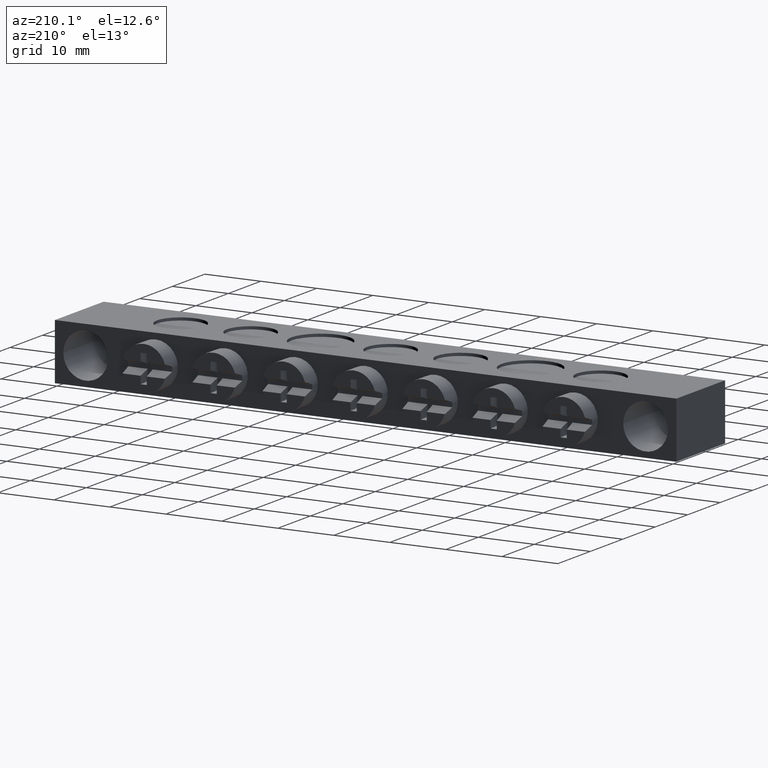
[diagram: clean part render]
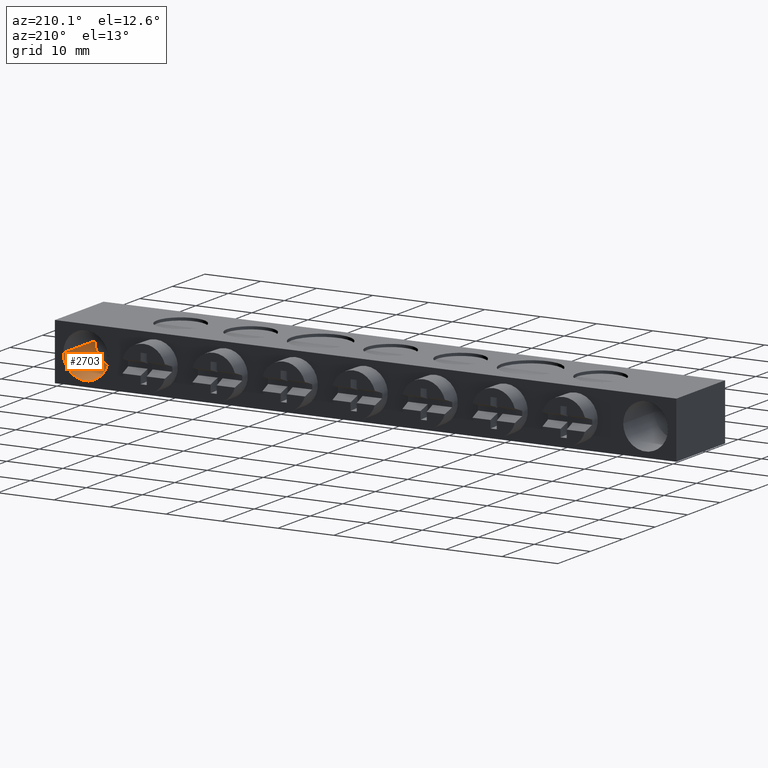
[diagram: same view with one face highlighted and labeled with its STEP entity id]
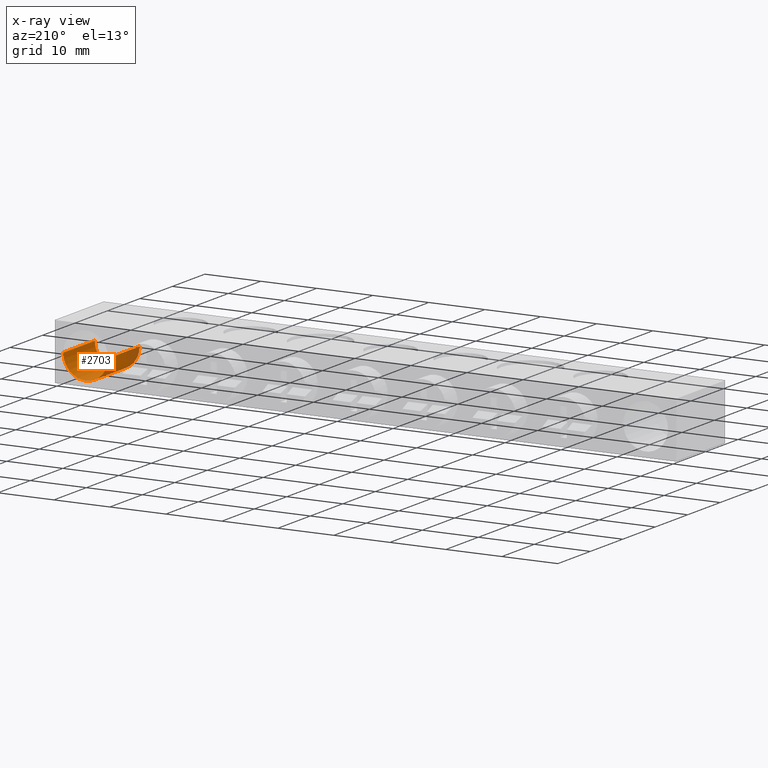
[diagram: x-ray of the same camera — body ghosted, the highlighted face saturated]
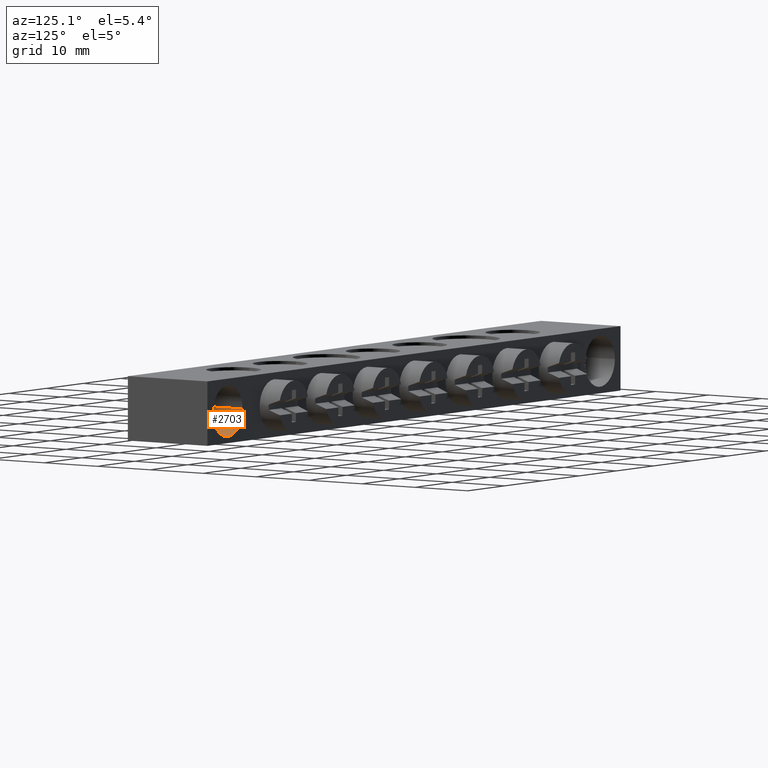
[diagram: same view with one face highlighted and labeled with its STEP entity id]
A machine part, auxiliary view. The second image highlights one B-rep face of the part: STEP entity #2703.
The next image is the same camera in x-ray: the body ghosted, the highlighted face saturated — about 10% of this face is hidden behind the body in this view.
A second angle (auxiliary view) of the same face is appended — the face is thin or edge-on in the first view.
In plain terms, the highlighted cylindrical surface (edge-blend (fillet) strip) has radius 4 mm, axis along (0, 1, 0).
Its self-contained STEP definition (entity closure, byte-faithful):
#25 = EDGE_CURVE ( 'NONE', #3244, #3259, #869, .T. ) ;
#284 = EDGE_LOOP ( 'NONE', ( #4137, #4095, #4167, #4128 ) ) ;
#856 = CIRCLE ( 'NONE', #879, 4.000000000000031100 ) ;
#869 = CIRCLE ( 'NONE', #895, 4.000000000000031100 ) ;
#879 = AXIS2_PLACEMENT_3D ( 'NONE', #3579, #3543, #3581 ) ;
#895 = AXIS2_PLACEMENT_3D ( 'NONE', #3338, #3356, #3365 ) ;
#1022 = AXIS2_PLACEMENT_3D ( 'NONE', #2187, #2193, #2198 ) ;
#1188 = VECTOR ( 'NONE', #3199, 1000.000000000000000 ) ;
#1224 = VECTOR ( 'NONE', #3185, 1000.000000000000000 ) ;
#1615 = LINE ( 'NONE', #3198, #1188 ) ;
#2186 = CYLINDRICAL_SURFACE ( 'NONE', #1022, 4.000000000000031100 ) ;
#2187 = CARTESIAN_POINT ( 'NONE',  ( 112.0000000000000000, 15.00000000000000400, -5.000000000000000000 ) ) ;
#2193 = DIRECTION ( 'NONE',  ( 1.156482317317877900E-016, 1.000000000000000000, 0.0000000000000000000 ) ) ;
#2198 = DIRECTION ( 'NONE',  ( -1.000000000000000000, 0.0000000000000000000, 0.0000000000000000000 ) ) ;
#2222 = FACE_OUTER_BOUND ( 'NONE', #284, .T. ) ;
#2285 = EDGE_CURVE ( 'NONE', #3265, #3278, #856, .T. ) ;
#2334 = CARTESIAN_POINT ( 'NONE',  ( 107.9999999999999700, 15.00000000000000400, -5.000000000000000000 ) ) ;
#2364 = CARTESIAN_POINT ( 'NONE',  ( 116.0000000000653400, 5.300000000000036200, -4.999999999999999100 ) ) ;
#2378 = CARTESIAN_POINT ( 'NONE',  ( 107.9999999999346600, 5.300000000000038000, -5.000000000000000000 ) ) ;
#2383 = CARTESIAN_POINT ( 'NONE',  ( 116.0000000000000300, 15.00000000000000400, -4.999999999999999100 ) ) ;
#2703 = ADVANCED_FACE ( 'NONE', ( #2222 ), #2186, .F. ) ;
#2781 = EDGE_CURVE ( 'NONE', #3244, #3265, #1615, .T. ) ;
#2842 = EDGE_CURVE ( 'NONE', #3259, #3278, #3151, .T. ) ;
#3127 = CARTESIAN_POINT ( 'NONE',  ( 107.9999999999999700, 15.00000000000000400, -5.000000000000000000 ) ) ;
#3151 = LINE ( 'NONE', #3127, #1224 ) ;
#3185 = DIRECTION ( 'NONE',  ( 1.156482317317877900E-016, 1.000000000000000000, 0.0000000000000000000 ) ) ;
#3198 = CARTESIAN_POINT ( 'NONE',  ( 116.0000000000000300, 15.00000000000000400, -4.999999999999999100 ) ) ;
#3199 = DIRECTION ( 'NONE',  ( 1.156482317317877900E-016, 1.000000000000000000, 0.0000000000000000000 ) ) ;
#3244 = VERTEX_POINT ( 'NONE', #2364 ) ;
#3259 = VERTEX_POINT ( 'NONE', #2378 ) ;
#3265 = VERTEX_POINT ( 'NONE', #2383 ) ;
#3278 = VERTEX_POINT ( 'NONE', #2334 ) ;
#3338 = CARTESIAN_POINT ( 'NONE',  ( 112.0000000000000000, 5.300000000000037100, -5.000000000000000000 ) ) ;
#3356 = DIRECTION ( 'NONE',  ( 1.156482317317877900E-016, 1.000000000000000000, 0.0000000000000000000 ) ) ;
#3365 = DIRECTION ( 'NONE',  ( -1.000000000000000000, 2.168404344970992100E-016, 0.0000000000000000000 ) ) ;
#3543 = DIRECTION ( 'NONE',  ( 1.156482317317877900E-016, 1.000000000000000000, 0.0000000000000000000 ) ) ;
#3579 = CARTESIAN_POINT ( 'NONE',  ( 112.0000000000000000, 15.00000000000000400, -5.000000000000000000 ) ) ;
#3581 = DIRECTION ( 'NONE',  ( -1.000000000000000000, 0.0000000000000000000, 0.0000000000000000000 ) ) ;
#4095 = ORIENTED_EDGE ( 'NONE', *, *, #2781, .T. ) ;
#4128 = ORIENTED_EDGE ( 'NONE', *, *, #2842, .F. ) ;
#4137 = ORIENTED_EDGE ( 'NONE', *, *, #25, .F. ) ;
#4167 = ORIENTED_EDGE ( 'NONE', *, *, #2285, .T. ) ;